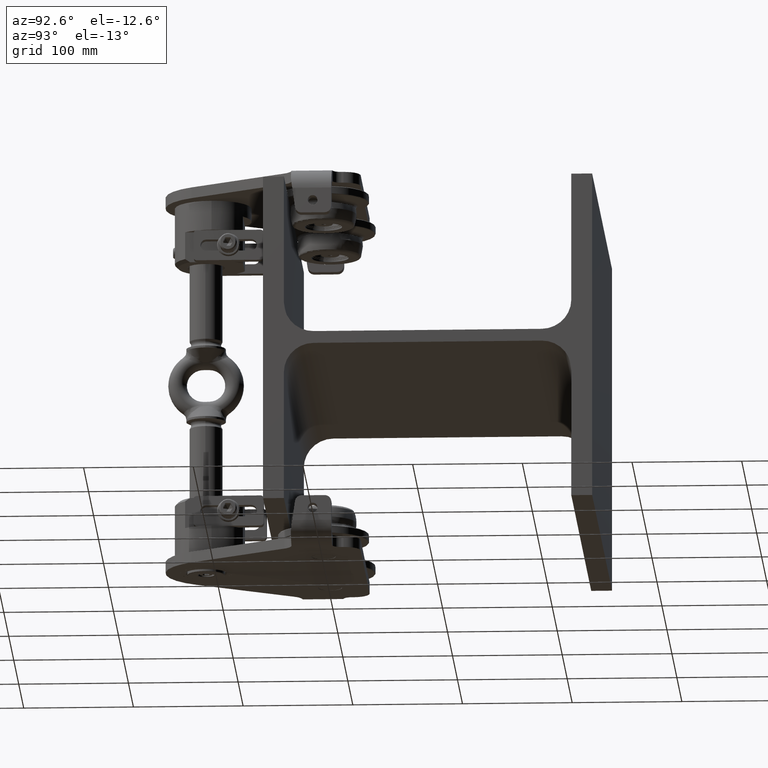
[diagram: clean part render]
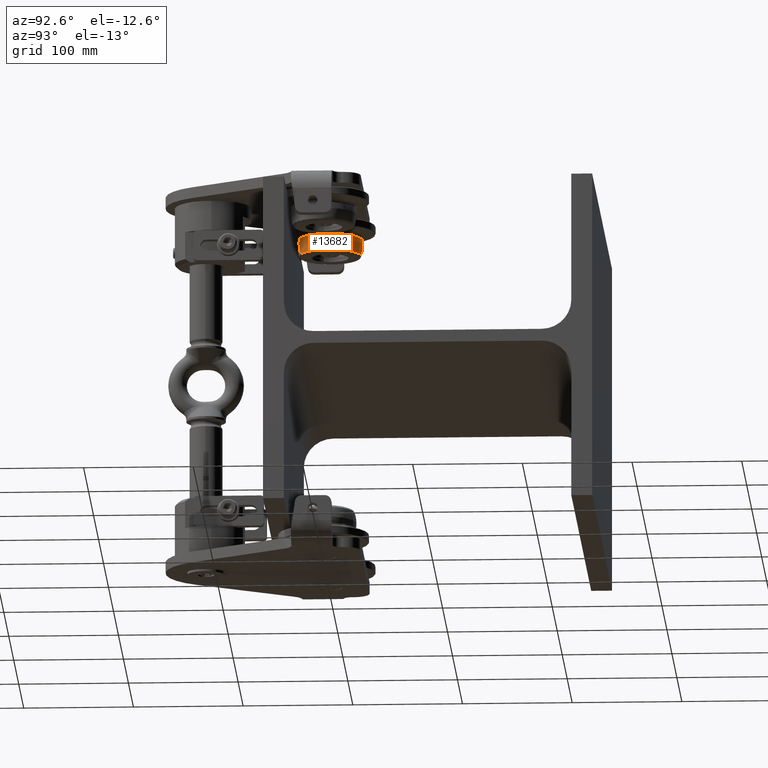
[diagram: same view with one face highlighted and labeled with its STEP entity id]
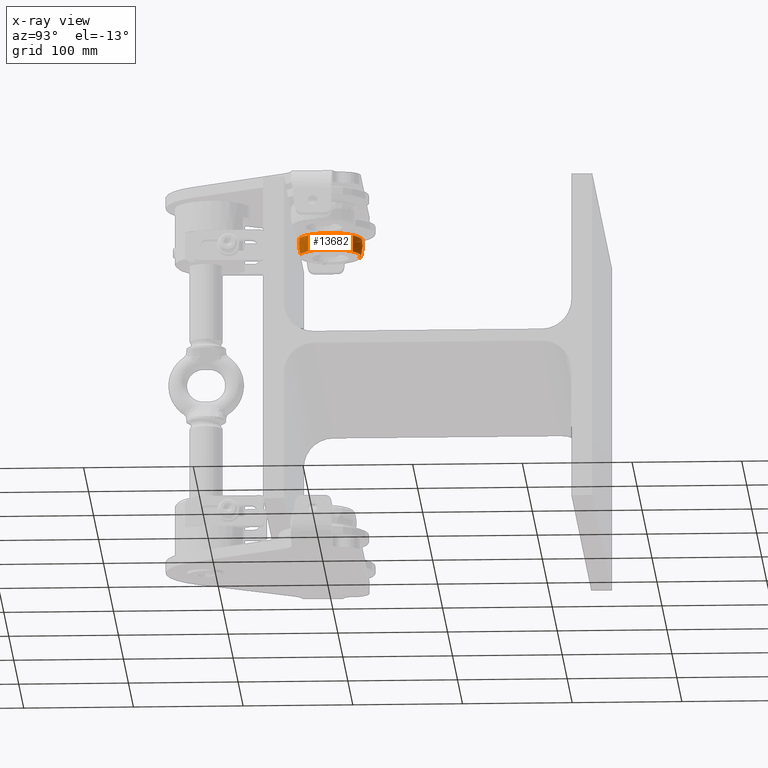
[diagram: x-ray of the same camera — body ghosted, the highlighted face saturated]
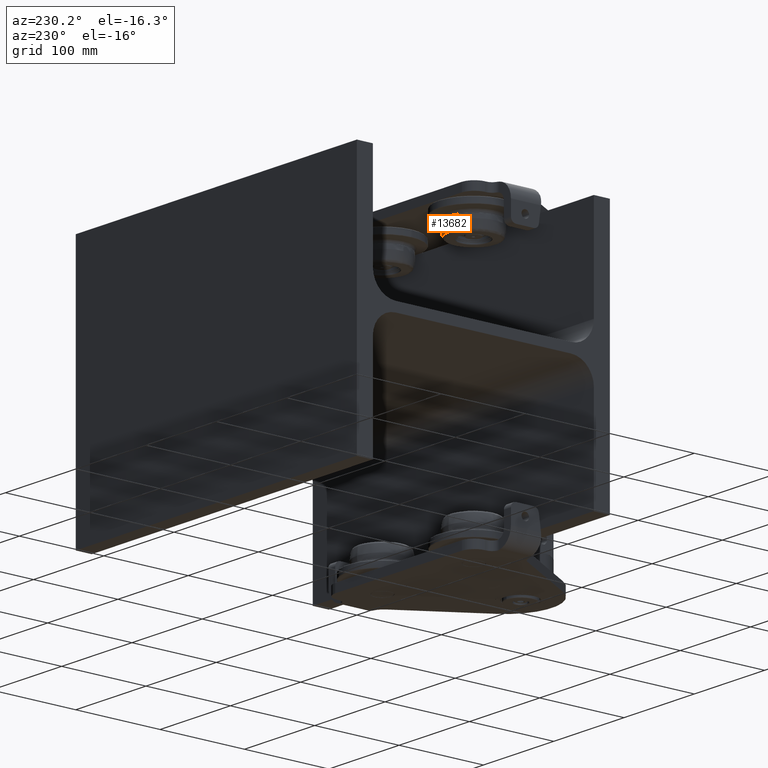
[diagram: same view with one face highlighted and labeled with its STEP entity id]
A machine part, auxiliary view. The second image highlights one B-rep face of the part: STEP entity #13682.
The next image is the same camera in x-ray: the body ghosted, the highlighted face saturated — about 0% of this face is hidden behind the body in this view.
A second angle (auxiliary view) of the same face is appended — the face is thin or edge-on in the first view.
In plain terms, the highlighted spherical surface has radius 30 mm.
Its self-contained STEP definition (entity closure, byte-faithful):
#303 = DIRECTION ( 'NONE',  ( 0.9237280213470682200, 0.3830490080632377200, 0.0000000000000000000 ) ) ;
#529 = EDGE_CURVE ( 'NONE', #45199, #46176, #47819, .T. ) ;
#1142 = AXIS2_PLACEMENT_3D ( 'NONE', #2037, #26626, #14837 ) ;
#1841 = ORIENTED_EDGE ( 'NONE', *, *, #529, .F. ) ;
#2037 = CARTESIAN_POINT ( 'NONE',  ( -65.00000000000004300, -100.9999999999999700, 143.9999999999996900 ) ) ;
#2174 = ORIENTED_EDGE ( 'NONE', *, *, #18680, .T. ) ;
#2632 = SPHERICAL_SURFACE ( 'NONE', #18924, 30.00000000000000000 ) ;
#4281 = ORIENTED_EDGE ( 'NONE', *, *, #33157, .T. ) ;
#5093 = EDGE_CURVE ( 'NONE', #46176, #24024, #35919, .T. ) ;
#5161 = DIRECTION ( 'NONE',  ( 0.0000000000000000000, 0.0000000000000000000, 1.000000000000000000 ) ) ;
#8175 = CARTESIAN_POINT ( 'NONE',  ( -65.00000000000004300, -100.9999999999999700, 143.9999999999996900 ) ) ;
#8641 = CARTESIAN_POINT ( 'NONE',  ( -75.90716475580117600, -74.69722018254299200, 134.5555555555554000 ) ) ;
#9162 = CARTESIAN_POINT ( 'NONE',  ( -65.00000000000004300, -100.9999999999999700, 149.1784242055228400 ) ) ;
#9431 = CIRCLE ( 'NONE', #1142, 30.00000000000000000 ) ;
#13283 = CIRCLE ( 'NONE', #51783, 30.00000000000000000 ) ;
#13682 = ADVANCED_FACE ( 'NONE', ( #22208 ), #2632, .T. ) ;
#14837 = DIRECTION ( 'NONE',  ( 0.3830490080632377200, -0.9237280213470682200, 0.0000000000000000000 ) ) ;
#17223 = AXIS2_PLACEMENT_3D ( 'NONE', #9162, #5161, #25377 ) ;
#17608 = VERTEX_POINT ( 'NONE', #23363 ) ;
#17898 = DIRECTION ( 'NONE',  ( 0.0000000000000000000, 0.0000000000000000000, 1.000000000000000000 ) ) ;
#18680 = EDGE_CURVE ( 'NONE', #50003, #51276, #38473, .T. ) ;
#18924 = AXIS2_PLACEMENT_3D ( 'NONE', #34742, #22787, #47837 ) ;
#19006 = CARTESIAN_POINT ( 'NONE',  ( -76.31897778156940100, -73.70412733162756100, 149.1784242055228400 ) ) ;
#19069 = CARTESIAN_POINT ( 'NONE',  ( -38.69722018254270800, -90.09283524419871000, 134.5555555555554000 ) ) ;
#21994 = DIRECTION ( 'NONE',  ( 0.0000000000000000000, 0.0000000000000000000, 1.000000000000000000 ) ) ;
#22208 = FACE_OUTER_BOUND ( 'NONE', #36813, .T. ) ;
#22787 = DIRECTION ( 'NONE',  ( -0.9237280213470683300, -0.3830490080632376600, 0.0000000000000000000 ) ) ;
#23363 = CARTESIAN_POINT ( 'NONE',  ( -54.09283524419892300, -127.3027798174569700, 134.5555555555554000 ) ) ;
#23712 = ORIENTED_EDGE ( 'NONE', *, *, #42270, .F. ) ;
#24024 = VERTEX_POINT ( 'NONE', #19006 ) ;
#25377 = DIRECTION ( 'NONE',  ( 0.9237280213470681100, 0.3830490080632377200, 0.0000000000000000000 ) ) ;
#25467 = DIRECTION ( 'NONE',  ( -0.3830490080632377200, 0.9237280213470682200, 0.0000000000000000000 ) ) ;
#26057 = DIRECTION ( 'NONE',  ( 0.9237280213470682200, 0.3830490080632377200, 0.0000000000000000000 ) ) ;
#26626 = DIRECTION ( 'NONE',  ( -0.9237280213470682200, -0.3830490080632377700, 0.0000000000000000000 ) ) ;
#27048 = ORIENTED_EDGE ( 'NONE', *, *, #34446, .T. ) ;
#30056 = CARTESIAN_POINT ( 'NONE',  ( -64.99999999999977300, -100.9999999999998700, 134.5555555555554000 ) ) ;
#33157 = EDGE_CURVE ( 'NONE', #17608, #50003, #43753, .T. ) ;
#33223 = DIRECTION ( 'NONE',  ( 0.9237280213470682200, 0.3830490080632378800, -0.0000000000000000000 ) ) ;
#34446 = EDGE_CURVE ( 'NONE', #51276, #24024, #13283, .T. ) ;
#34713 = AXIS2_PLACEMENT_3D ( 'NONE', #46121, #21994, #303 ) ;
#34742 = CARTESIAN_POINT ( 'NONE',  ( -65.00000000000004300, -100.9999999999999700, 143.9999999999996900 ) ) ;
#35919 = CIRCLE ( 'NONE', #49590, 29.54968566241727100 ) ;
#36813 = EDGE_LOOP ( 'NONE', ( #23712, #4281, #2174, #27048, #47848, #1841 ) ) ;
#38473 = CIRCLE ( 'NONE', #34713, 28.47459339719915800 ) ;
#41855 = CARTESIAN_POINT ( 'NONE',  ( -37.70412733162749700, -89.68102221843057000, 149.1784242055228400 ) ) ;
#42270 = EDGE_CURVE ( 'NONE', #17608, #45199, #9431, .T. ) ;
#43753 = CIRCLE ( 'NONE', #51702, 28.47459339719915800 ) ;
#44873 = CARTESIAN_POINT ( 'NONE',  ( -65.00000000000004300, -100.9999999999999700, 149.1784242055228400 ) ) ;
#45199 = VERTEX_POINT ( 'NONE', #52396 ) ;
#46121 = CARTESIAN_POINT ( 'NONE',  ( -64.99999999999977300, -100.9999999999998700, 134.5555555555554000 ) ) ;
#46176 = VERTEX_POINT ( 'NONE', #41855 ) ;
#47819 = CIRCLE ( 'NONE', #17223, 29.54968566241727100 ) ;
#47837 = DIRECTION ( 'NONE',  ( -0.3830490080632376100, 0.9237280213470682200, 0.0000000000000000000 ) ) ;
#47848 = ORIENTED_EDGE ( 'NONE', *, *, #5093, .F. ) ;
#49590 = AXIS2_PLACEMENT_3D ( 'NONE', #44873, #52748, #53318 ) ;
#50003 = VERTEX_POINT ( 'NONE', #19069 ) ;
#51276 = VERTEX_POINT ( 'NONE', #8641 ) ;
#51702 = AXIS2_PLACEMENT_3D ( 'NONE', #30056, #17898, #26057 ) ;
#51783 = AXIS2_PLACEMENT_3D ( 'NONE', #8175, #33223, #25467 ) ;
#52396 = CARTESIAN_POINT ( 'NONE',  ( -53.68102221843068400, -128.2958726683724000, 149.1784242055228400 ) ) ;
#52748 = DIRECTION ( 'NONE',  ( 0.0000000000000000000, 0.0000000000000000000, 1.000000000000000000 ) ) ;
#53318 = DIRECTION ( 'NONE',  ( 0.9237280213470681100, 0.3830490080632377200, 0.0000000000000000000 ) ) ;